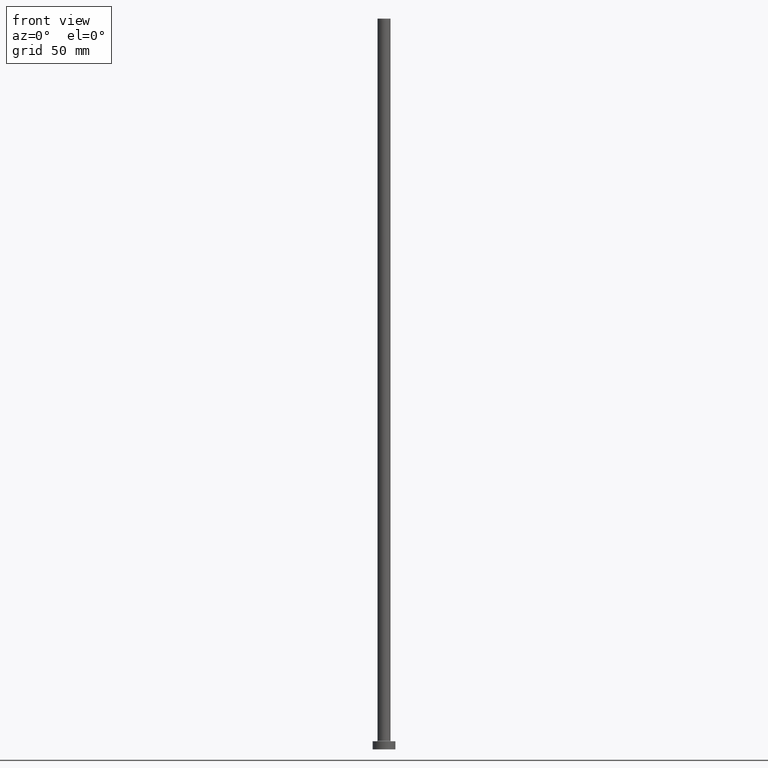
[diagram: clean part render]
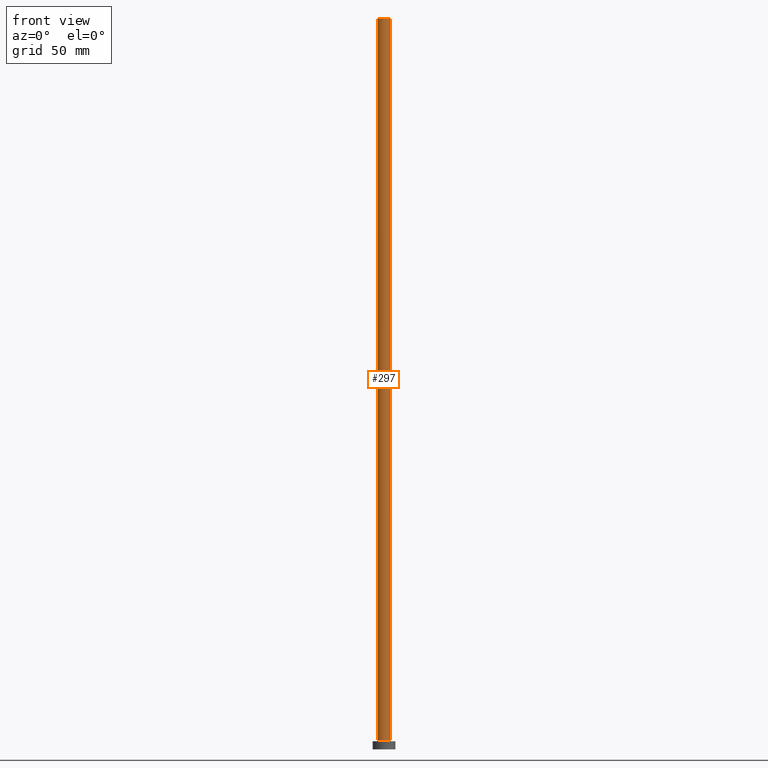
[diagram: same view with one face highlighted and labeled with its STEP entity id]
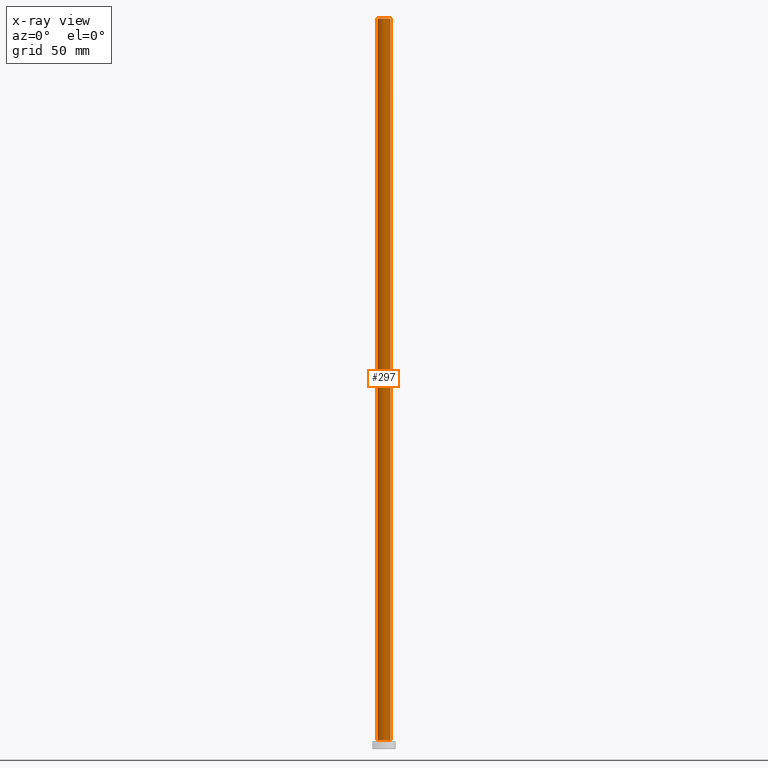
[diagram: x-ray of the same camera — body ghosted, the highlighted face saturated]
A machine part, front view. The second image highlights one B-rep face of the part: STEP entity #297.
The next image is the same camera in x-ray: the body ghosted, the highlighted face saturated — about 0% of this face is hidden behind the body in this view.
In plain terms, the highlighted cylindrical surface (edge-blend (fillet) strip) has radius 4 mm, axis along (-0, -0, -1).
Its self-contained STEP definition (entity closure, byte-faithful):
#5 = VERTEX_POINT ( 'NONE', #152 ) ;
#16 = CARTESIAN_POINT ( 'NONE',  ( 4.000000000000000000, 4.898587196589412829E-16, 450.0000000000000000 ) ) ;
#22 = DIRECTION ( 'NONE',  ( 1.000000000000000000, 0.000000000000000000, 0.000000000000000000 ) ) ;
#28 = CARTESIAN_POINT ( 'NONE',  ( 0.000000000000000000, 0.000000000000000000, 450.0000000000000000 ) ) ;
#45 = AXIS2_PLACEMENT_3D ( 'NONE', #28, #138, #348 ) ;
#46 = CIRCLE ( 'NONE', #372, 4.000000000000000000 ) ;
#105 = EDGE_LOOP ( 'NONE', ( #349, #452, #184, #321 ) ) ;
#106 = DIRECTION ( 'NONE',  ( 0.000000000000000000, 0.000000000000000000, 1.000000000000000000 ) ) ;
#117 = CIRCLE ( 'NONE', #159, 4.000000000000000000 ) ;
#123 = EDGE_CURVE ( 'NONE', #5, #362, #46, .T. ) ;
#138 = DIRECTION ( 'NONE',  ( -0.000000000000000000, -0.000000000000000000, -1.000000000000000000 ) ) ;
#144 = CARTESIAN_POINT ( 'NONE',  ( -4.000000000000000000, 0.000000000000000000, 450.0000000000000000 ) ) ;
#152 = CARTESIAN_POINT ( 'NONE',  ( -4.000000000000000000, 0.000000000000000000, 5.500000000000005329 ) ) ;
#159 = AXIS2_PLACEMENT_3D ( 'NONE', #451, #106, #240 ) ;
#177 = LINE ( 'NONE', #144, #438 ) ;
#184 = ORIENTED_EDGE ( 'NONE', *, *, #461, .T. ) ;
#187 = CARTESIAN_POINT ( 'NONE',  ( 4.000000000000000000, 4.898587196589412829E-16, 450.0000000000000000 ) ) ;
#221 = VERTEX_POINT ( 'NONE', #304 ) ;
#231 = DIRECTION ( 'NONE',  ( 0.000000000000000000, 0.000000000000000000, 1.000000000000000000 ) ) ;
#232 = CYLINDRICAL_SURFACE ( 'NONE', #45, 4.000000000000000000 ) ;
#240 = DIRECTION ( 'NONE',  ( 1.000000000000000000, 0.000000000000000000, 0.000000000000000000 ) ) ;
#250 = EDGE_CURVE ( 'NONE', #457, #362, #255, .T. ) ;
#251 = DIRECTION ( 'NONE',  ( -0.000000000000000000, -0.000000000000000000, -1.000000000000000000 ) ) ;
#255 = LINE ( 'NONE', #16, #283 ) ;
#278 = CARTESIAN_POINT ( 'NONE',  ( 4.000000000000000000, 4.898587196589412829E-16, 5.500000000000005329 ) ) ;
#283 = VECTOR ( 'NONE', #371, 1000.000000000000000 ) ;
#297 = ADVANCED_FACE ( 'NONE', ( #309 ), #232, .T. ) ;
#304 = CARTESIAN_POINT ( 'NONE',  ( -4.000000000000000000, 0.000000000000000000, 450.0000000000000000 ) ) ;
#309 = FACE_OUTER_BOUND ( 'NONE', #105, .T. ) ;
#321 = ORIENTED_EDGE ( 'NONE', *, *, #123, .T. ) ;
#326 = EDGE_CURVE ( 'NONE', #221, #457, #117, .T. ) ;
#333 = CARTESIAN_POINT ( 'NONE',  ( 0.000000000000000000, 0.000000000000000000, 5.500000000000005329 ) ) ;
#348 = DIRECTION ( 'NONE',  ( -1.000000000000000000, 0.000000000000000000, 0.000000000000000000 ) ) ;
#349 = ORIENTED_EDGE ( 'NONE', *, *, #250, .F. ) ;
#362 = VERTEX_POINT ( 'NONE', #278 ) ;
#371 = DIRECTION ( 'NONE',  ( -0.000000000000000000, -0.000000000000000000, -1.000000000000000000 ) ) ;
#372 = AXIS2_PLACEMENT_3D ( 'NONE', #333, #231, #22 ) ;
#438 = VECTOR ( 'NONE', #251, 1000.000000000000000 ) ;
#451 = CARTESIAN_POINT ( 'NONE',  ( 0.000000000000000000, 0.000000000000000000, 450.0000000000000000 ) ) ;
#452 = ORIENTED_EDGE ( 'NONE', *, *, #326, .F. ) ;
#457 = VERTEX_POINT ( 'NONE', #187 ) ;
#461 = EDGE_CURVE ( 'NONE', #221, #5, #177, .T. ) ;